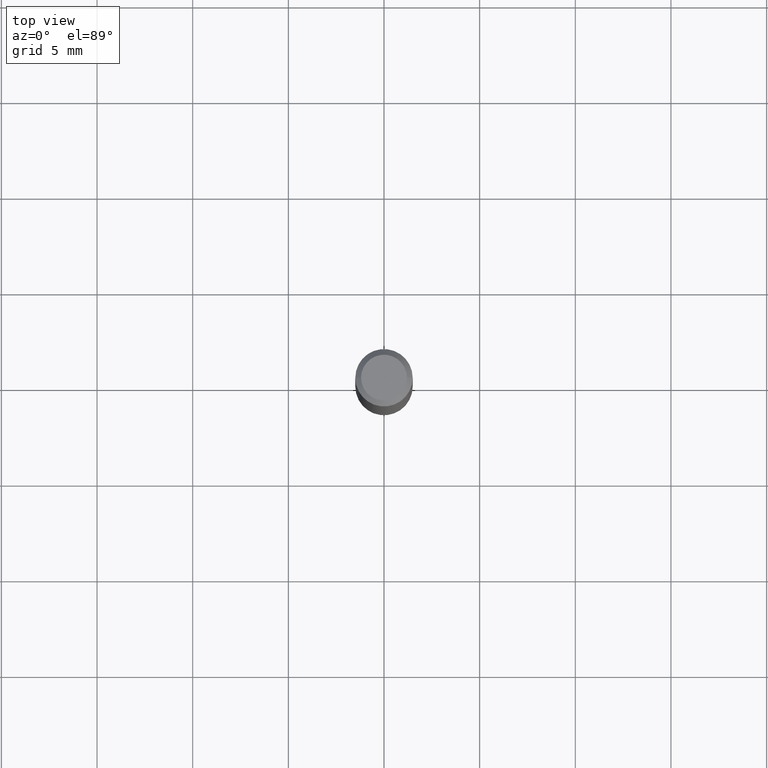
[diagram: clean part render]
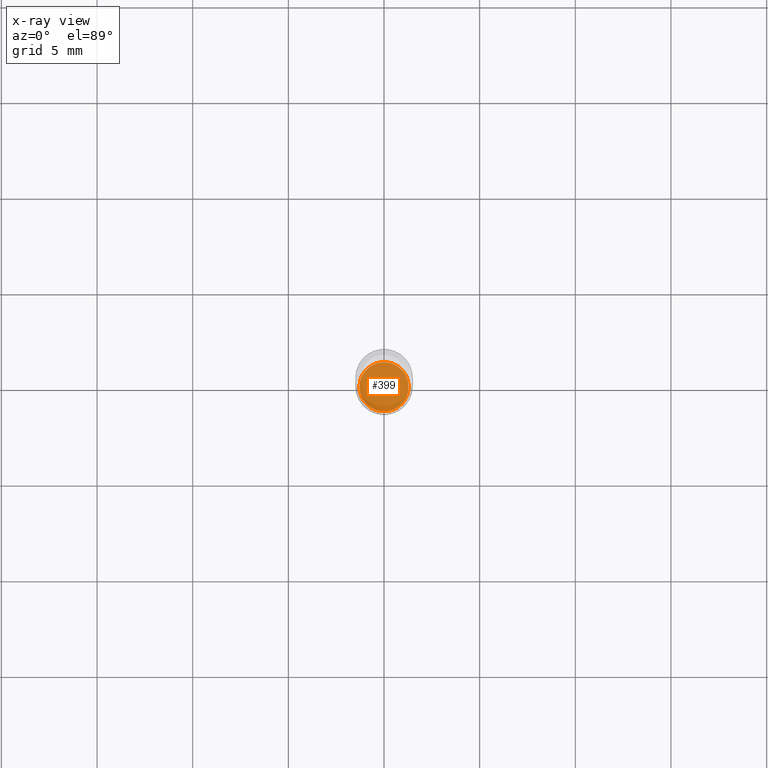
[diagram: x-ray — body ghosted, one internal face saturated and labeled with its STEP entity id]
A machine part, top view, then the same camera in x-ray: the body is ghosted and one INTERNAL B-rep face — a face not visible from any outside direction — is saturated and labeled: STEP entity #399.
In plain terms, the highlighted planar face has unit normal (-0, 0, 1).
Its self-contained STEP definition (entity closure, byte-faithful):
#71 = ORIENTED_EDGE ( 'NONE', *, *, #155, .F. ) ;
#93 = AXIS2_PLACEMENT_3D ( 'NONE', #344, #342, #458 ) ;
#106 = DIRECTION ( 'NONE',  ( 1.000000000000000000, -6.982962677686263555E-15, 0.000000000000000000 ) ) ;
#113 = PLANE ( 'NONE',  #170 ) ;
#151 = DIRECTION ( 'NONE',  ( -2.438088387897960049E-29, 3.491481338843145188E-15, 1.000000000000000000 ) ) ;
#155 = EDGE_CURVE ( 'NONE', #373, #468, #378, .T. ) ;
#170 = AXIS2_PLACEMENT_3D ( 'NONE', #489, #151, #275 ) ;
#242 = CARTESIAN_POINT ( 'NONE',  ( 0.05070000000000000201, -4.175462533122516319E-15, -1.094499999999999806 ) ) ;
#256 = DIRECTION ( 'NONE',  ( -2.445468806185136597E-29, 3.491481338843145583E-15, 1.000000000000000000 ) ) ;
#257 = ORIENTED_EDGE ( 'NONE', *, *, #375, .F. ) ;
#259 = AXIS2_PLACEMENT_3D ( 'NONE', #365, #256, #106 ) ;
#275 = DIRECTION ( 'NONE',  ( 1.000000000000000000, -6.982962677686265922E-15, 4.876176775795935793E-29 ) ) ;
#280 = EDGE_LOOP ( 'NONE', ( #257, #71 ) ) ;
#342 = DIRECTION ( 'NONE',  ( -2.445468806185136597E-29, 3.491481338843145583E-15, 1.000000000000000000 ) ) ;
#344 = CARTESIAN_POINT ( 'NONE',  ( 2.676565608369631794E-29, -3.821426325363822773E-15, -1.094499999999999806 ) ) ;
#352 = CARTESIAN_POINT ( 'NONE',  ( -0.05070000000000000201, -3.458531931159340616E-15, -1.094499999999999806 ) ) ;
#365 = CARTESIAN_POINT ( 'NONE',  ( 2.676565608369631794E-29, -3.821426325363822773E-15, -1.094499999999999806 ) ) ;
#373 = VERTEX_POINT ( 'NONE', #352 ) ;
#375 = EDGE_CURVE ( 'NONE', #468, #373, #419, .T. ) ;
#378 = CIRCLE ( 'NONE', #259, 0.05070000000000000201 ) ;
#399 = ADVANCED_FACE ( 'NONE', ( #486 ), #113, .F. ) ;
#419 = CIRCLE ( 'NONE', #93, 0.05070000000000000201 ) ;
#458 = DIRECTION ( 'NONE',  ( 1.000000000000000000, -6.982962677686263555E-15, 0.000000000000000000 ) ) ;
#468 = VERTEX_POINT ( 'NONE', #242 ) ;
#486 = FACE_OUTER_BOUND ( 'NONE', #280, .T. ) ;
#489 = CARTESIAN_POINT ( 'NONE',  ( 2.676565608369631794E-29, -3.821426325363822773E-15, -1.094499999999999806 ) ) ;